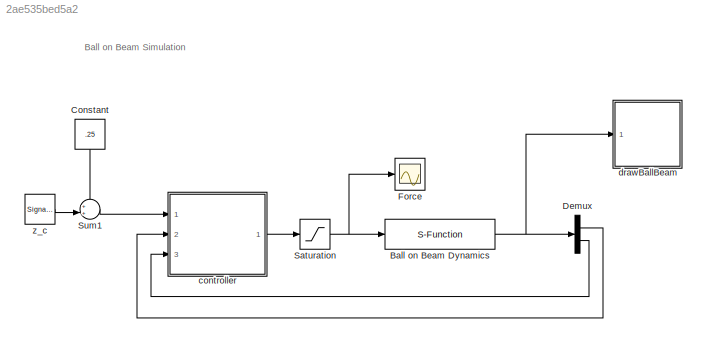
MODEL slx_2ae535bed5a2
KIND model
CONFIG AbsTol = auto
CONFIG FixedStep = auto
CONFIG InitFcn = param
CONFIG MaxStep = auto
CONFIG MinStep = auto
CONFIG RelTol = 1e-3
CONFIG SampleTimeConstraint = Unconstrained
CONFIG Solver = ode45
CONFIG SolverMode = Auto
CONFIG SolverName = ode45
CONFIG StartTime = 0.0
CONFIG StopTime = 200
BLOCK [S-Function] Ball on Beam Dynamics
  FunctionName = ballbeam_dynamics
  Parameters = AP
  Ports = [1, 1]
BLOCK [Constant] Constant
  Value = .25
BLOCK [Demux] Demux
  DisplayOption = bar
  Outputs = 2
  Ports = [1, 2]
BLOCK [Scope] Force
  DataFormat = StructureWithTime
  Floating = off
  NumInputPorts = 1
  Ports = [1]
  SampleTime = 0
  SaveName = ScopeData2
  YMax = 12.75
  YMin = 10
BLOCK [Saturate] Saturation
  InputPortMap = u0
  LowerLimit = -P.Fmax
  Ports = [1, 1]
  UpperLimit = P.Fmax
BLOCK [Sum] Sum1
  IconShape = round
  InputSameDT = off
  Inputs = ++|
  OutDataTypeStr = Inherit: Inherit via internal rule
  Ports = [2, 1]
  SaturateOnIntegerOverflow = off
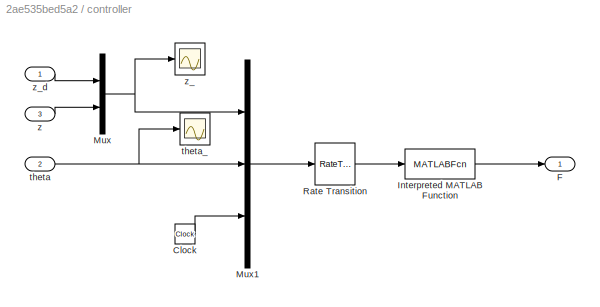
BLOCK [SubSystem] controller
  Ports = [3, 1]
  RequestExecContextInheritance = off
BLOCK [Clock] controller/Clock
BLOCK [Outport] controller/F
  IconDisplay = Port number
BLOCK [MATLABFcn] controller/Interpreted MATLAB Function
  MATLABFcn = ballbeam_SSctrl(u,P)
  OutputDimensions = 1
  Ports = [1, 1]
BLOCK [Mux] controller/Mux
  DisplayOption = bar
  Inputs = 2
  Ports = [2, 1]
BLOCK [Mux] controller/Mux1
  DisplayOption = bar
  Inputs = 3
  Ports = [3, 1]
BLOCK [RateTransition] controller/Rate Transition
  OutPortSampleTime = P.Ts
BLOCK [Inport] controller/theta
  IconDisplay = Port number
  Port = 2
BLOCK [Scope] controller/theta_
  DataFormat = StructureWithTime
  Floating = off
  LimitDataPoints = off
  NumInputPorts = 1
  Ports = [1]
  SampleTime = 0
  TimeRange = 100
  YMax = 0.075
  YMin = -0.075
BLOCK [Inport] controller/z
  IconDisplay = Port number
  Port = 3
BLOCK [Scope] controller/z_
  DataFormat = StructureWithTime
  Floating = off
  LimitDataPoints = off
  NumInputPorts = 1
  Ports = [1]
  SampleTime = 0
  SaveName = ScopeData1
  TimeRange = 100
  YMax = 0.425
  YMin = 0.075
BLOCK [Inport] controller/z_d
  IconDisplay = Port number
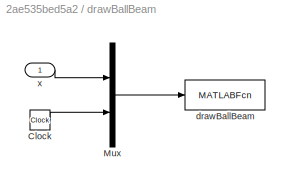
BLOCK [SubSystem] drawBallBeam
  Ports = [1]
  RequestExecContextInheritance = off
BLOCK [Clock] drawBallBeam/Clock
BLOCK [Mux] drawBallBeam/Mux
  DisplayOption = bar
  Inputs = 2
  Ports = [2, 1]
BLOCK [MATLABFcn] drawBallBeam/drawBallBeam
  MATLABFcn = drawBallBeam(u)
  OutputDimensions = 0
  Ports = [1]
  SampleTime = 0.1
BLOCK [Inport] drawBallBeam/x
  IconDisplay = Port number
BLOCK [SignalGenerator] z_c
  Amplitude = .15
  Frequency = .02
  Ports = [0, 1]
  WaveForm = square
ANNOTATION (root): Ball on Beam Simulation
NET Ball on Beam Dynamics:1 -> Demux:1, drawBallBeam:1
LINE Constant:1 -> Sum1:1
LINE Demux:1 -> controller:2
LINE Demux:2 -> controller:3
NET Saturation:1 -> Ball on Beam Dynamics:1, Force:1
LINE Sum1:1 -> controller:1
LINE controller/Clock:1 -> controller/Mux1:3
LINE controller/Interpreted MATLAB Function:1 -> controller/F:1
LINE controller/Mux1:1 -> controller/Rate Transition:1
NET controller/Mux:1 -> controller/Mux1:1, controller/z_:1
LINE controller/Rate Transition:1 -> controller/Interpreted MATLAB Function:1
NET controller/theta:1 -> controller/Mux1:2, controller/theta_:1
LINE controller/z:1 -> controller/Mux:2
LINE controller/z_d:1 -> controller/Mux:1
LINE controller:1 -> Saturation:1
LINE drawBallBeam/Clock:1 -> drawBallBeam/Mux:2
LINE drawBallBeam/Mux:1 -> drawBallBeam/drawBallBeam:1
LINE drawBallBeam/x:1 -> drawBallBeam/Mux:1
LINE z_c:1 -> Sum1:2
note: NET lines group one-source signal fan-out (src -> all destinations, sorted); 1:1 wires keep LINE
